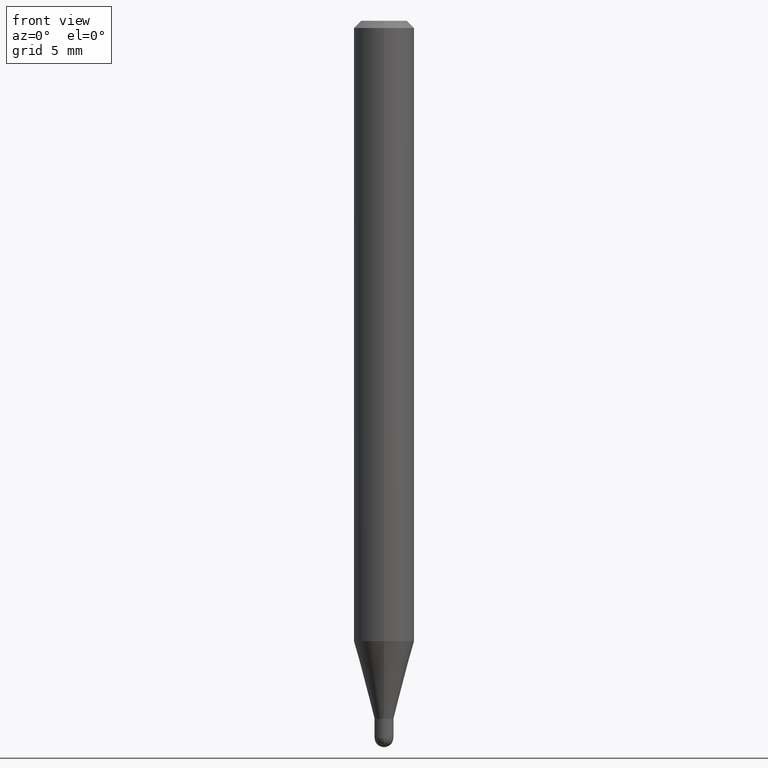
[diagram: clean part render]
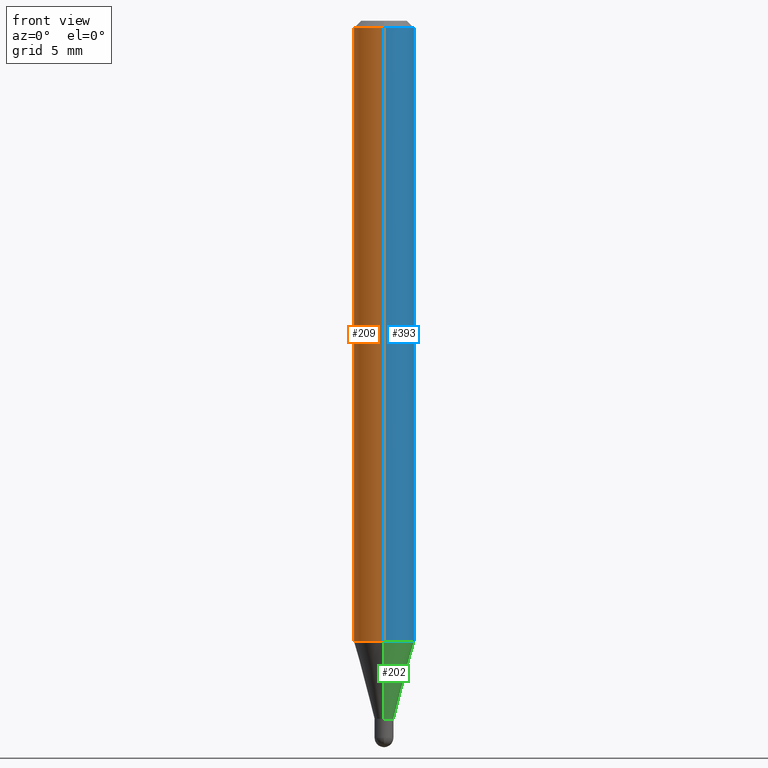
[diagram: same view with three faces highlighted in distinct colors, each labeled with its STEP entity id]
A machine part, front view with three faces highlighted in distinct colors.
Their STEP definitions:

[orange] entity #209 — the highlighted cylindrical surface (edge-blend (fillet) strip) has radius 1.5875 mm, axis along (-0, 0, 1).
#25 = CARTESIAN_POINT ( 'NONE',  ( 4.440892098500936776E-16, 0.06249999999999551054, -1.281021815274543618 ) ) ;
#31 = CARTESIAN_POINT ( 'NONE',  ( 4.440892098500625669E-16, 0.06250000000000000000, -2.182164816065379544E-16 ) ) ;
#39 = VERTEX_POINT ( 'NONE', #414 ) ;
#59 = EDGE_CURVE ( 'NONE', #286, #39, #144, .T. ) ;
#61 = CARTESIAN_POINT ( 'NONE',  ( 3.132714662716507044E-29, -4.472641174246900354E-15, -1.281021815274543396 ) ) ;
#62 = DIRECTION ( 'NONE',  ( -2.445481119339966983E-29, 3.491463705704607270E-15, 1.000000000000000000 ) ) ;
#63 = CIRCLE ( 'NONE', #482, 0.06250000000000000000 ) ;
#65 = EDGE_CURVE ( 'NONE', #163, #39, #463, .T. ) ;
#91 = EDGE_CURVE ( 'NONE', #284, #286, #63, .T. ) ;
#108 = CARTESIAN_POINT ( 'NONE',  ( 4.440892098500940720E-16, 0.06249999999999993755, -0.01500000000000022669 ) ) ;
#114 = CARTESIAN_POINT ( 'NONE',  ( 0.000000000000000000, 0.000000000000000000, 0.000000000000000000 ) ) ;
#118 = EDGE_LOOP ( 'NONE', ( #360, #165, #321, #240 ) ) ;
#120 = VECTOR ( 'NONE', #466, 39.37007874015748143 ) ;
#138 = DIRECTION ( 'NONE',  ( -6.982962677686265922E-15, -1.000000000000000000, 4.370956789862821150E-15 ) ) ;
#144 = LINE ( 'NONE', #446, #455 ) ;
#154 = LINE ( 'NONE', #31, #120 ) ;
#163 = VERTEX_POINT ( 'NONE', #108 ) ;
#165 = ORIENTED_EDGE ( 'NONE', *, *, #91, .T. ) ;
#172 = CARTESIAN_POINT ( 'NONE',  ( 3.668221679009952927E-31, -5.237195558556913912E-17, -0.01500000000000000812 ) ) ;
#189 = EDGE_CURVE ( 'NONE', #284, #163, #154, .T. ) ;
#209 = ADVANCED_FACE ( 'NONE', ( #429 ), #462, .T. ) ;
#217 = AXIS2_PLACEMENT_3D ( 'NONE', #172, #62, #409 ) ;
#230 = CARTESIAN_POINT ( 'NONE',  ( -4.364351673553604601E-16, -0.06250000000000449640, -1.281021815274543174 ) ) ;
#240 = ORIENTED_EDGE ( 'NONE', *, *, #65, .F. ) ;
#263 = DIRECTION ( 'NONE',  ( -2.445481119339966983E-29, 3.491463705704607270E-15, 1.000000000000000000 ) ) ;
#272 = AXIS2_PLACEMENT_3D ( 'NONE', #114, #423, #500 ) ;
#284 = VERTEX_POINT ( 'NONE', #25 ) ;
#286 = VERTEX_POINT ( 'NONE', #230 ) ;
#321 = ORIENTED_EDGE ( 'NONE', *, *, #59, .T. ) ;
#360 = ORIENTED_EDGE ( 'NONE', *, *, #189, .F. ) ;
#409 = DIRECTION ( 'NONE',  ( -6.982962677686265922E-15, -1.000000000000000000, 3.483106191921935554E-15 ) ) ;
#412 = DIRECTION ( 'NONE',  ( -2.445481119339966983E-29, 3.491463705704607270E-15, 1.000000000000000000 ) ) ;
#414 = CARTESIAN_POINT ( 'NONE',  ( -4.364351673553912750E-16, -0.06250000000000005551, -0.01499999999999979128 ) ) ;
#423 = DIRECTION ( 'NONE',  ( -2.445481119339966983E-29, 3.491463705704607270E-15, 1.000000000000000000 ) ) ;
#429 = FACE_OUTER_BOUND ( 'NONE', #118, .T. ) ;
#446 = CARTESIAN_POINT ( 'NONE',  ( -4.364351673553916201E-16, -0.06250000000000000000, 2.182164816065379544E-16 ) ) ;
#455 = VECTOR ( 'NONE', #412, 39.37007874015748143 ) ;
#462 = CYLINDRICAL_SURFACE ( 'NONE', #272, 0.06250000000000000000 ) ;
#463 = CIRCLE ( 'NONE', #217, 0.06250000000000000000 ) ;
#466 = DIRECTION ( 'NONE',  ( -2.445481119339966983E-29, 3.491463705704607270E-15, 1.000000000000000000 ) ) ;
#482 = AXIS2_PLACEMENT_3D ( 'NONE', #61, #263, #138 ) ;
#500 = DIRECTION ( 'NONE',  ( -6.982962677686265922E-15, -1.000000000000000000, 3.491463705704607270E-15 ) ) ;

[blue] entity #393 — the highlighted cylindrical surface (edge-blend (fillet) strip) has radius 1.5875 mm, axis along (-0, 0, 1).
#14 = DIRECTION ( 'NONE',  ( -2.445481119339966983E-29, 3.491463705704607270E-15, 1.000000000000000000 ) ) ;
#25 = CARTESIAN_POINT ( 'NONE',  ( 4.440892098500936776E-16, 0.06249999999999551054, -1.281021815274543618 ) ) ;
#31 = CARTESIAN_POINT ( 'NONE',  ( 4.440892098500625669E-16, 0.06250000000000000000, -2.182164816065379544E-16 ) ) ;
#39 = VERTEX_POINT ( 'NONE', #414 ) ;
#48 = EDGE_CURVE ( 'NONE', #286, #284, #447, .T. ) ;
#54 = AXIS2_PLACEMENT_3D ( 'NONE', #212, #14, #377 ) ;
#59 = EDGE_CURVE ( 'NONE', #286, #39, #144, .T. ) ;
#83 = ORIENTED_EDGE ( 'NONE', *, *, #59, .F. ) ;
#108 = CARTESIAN_POINT ( 'NONE',  ( 4.440892098500940720E-16, 0.06249999999999993755, -0.01500000000000022669 ) ) ;
#120 = VECTOR ( 'NONE', #466, 39.37007874015748143 ) ;
#123 = CARTESIAN_POINT ( 'NONE',  ( 0.000000000000000000, 0.000000000000000000, 0.000000000000000000 ) ) ;
#144 = LINE ( 'NONE', #446, #455 ) ;
#149 = ORIENTED_EDGE ( 'NONE', *, *, #326, .F. ) ;
#154 = LINE ( 'NONE', #31, #120 ) ;
#156 = DIRECTION ( 'NONE',  ( -6.982962677686265922E-15, -1.000000000000000000, 3.491463705704607270E-15 ) ) ;
#163 = VERTEX_POINT ( 'NONE', #108 ) ;
#184 = ORIENTED_EDGE ( 'NONE', *, *, #48, .T. ) ;
#189 = EDGE_CURVE ( 'NONE', #284, #163, #154, .T. ) ;
#212 = CARTESIAN_POINT ( 'NONE',  ( 3.132714662716507044E-29, -4.472641174246900354E-15, -1.281021815274543396 ) ) ;
#230 = CARTESIAN_POINT ( 'NONE',  ( -4.364351673553604601E-16, -0.06250000000000449640, -1.281021815274543174 ) ) ;
#243 = DIRECTION ( 'NONE',  ( -2.445481119339966983E-29, 3.491463705704607270E-15, 1.000000000000000000 ) ) ;
#247 = CARTESIAN_POINT ( 'NONE',  ( 3.668221679009952927E-31, -5.237195558556913912E-17, -0.01500000000000000812 ) ) ;
#262 = CIRCLE ( 'NONE', #411, 0.06250000000000000000 ) ;
#268 = EDGE_LOOP ( 'NONE', ( #184, #441, #149, #83 ) ) ;
#280 = CYLINDRICAL_SURFACE ( 'NONE', #394, 0.06250000000000000000 ) ;
#284 = VERTEX_POINT ( 'NONE', #25 ) ;
#286 = VERTEX_POINT ( 'NONE', #230 ) ;
#326 = EDGE_CURVE ( 'NONE', #39, #163, #262, .T. ) ;
#328 = FACE_OUTER_BOUND ( 'NONE', #268, .T. ) ;
#354 = DIRECTION ( 'NONE',  ( -6.982962677686265922E-15, -1.000000000000000000, 3.483106191921935554E-15 ) ) ;
#377 = DIRECTION ( 'NONE',  ( -6.982962677686265922E-15, -1.000000000000000000, 4.370956789862821150E-15 ) ) ;
#393 = ADVANCED_FACE ( 'NONE', ( #328 ), #280, .T. ) ;
#394 = AXIS2_PLACEMENT_3D ( 'NONE', #123, #243, #156 ) ;
#411 = AXIS2_PLACEMENT_3D ( 'NONE', #247, #477, #354 ) ;
#412 = DIRECTION ( 'NONE',  ( -2.445481119339966983E-29, 3.491463705704607270E-15, 1.000000000000000000 ) ) ;
#414 = CARTESIAN_POINT ( 'NONE',  ( -4.364351673553912750E-16, -0.06250000000000005551, -0.01499999999999979128 ) ) ;
#441 = ORIENTED_EDGE ( 'NONE', *, *, #189, .T. ) ;
#446 = CARTESIAN_POINT ( 'NONE',  ( -4.364351673553916201E-16, -0.06250000000000000000, 2.182164816065379544E-16 ) ) ;
#447 = CIRCLE ( 'NONE', #54, 0.06250000000000000000 ) ;
#455 = VECTOR ( 'NONE', #412, 39.37007874015748143 ) ;
#466 = DIRECTION ( 'NONE',  ( -2.445481119339966983E-29, 3.491463705704607270E-15, 1.000000000000000000 ) ) ;
#477 = DIRECTION ( 'NONE',  ( -2.445481119339966983E-29, 3.491463705704607270E-15, 1.000000000000000000 ) ) ;

[green] entity #202 — the highlighted conical surface has half-angle 15 deg.
#14 = DIRECTION ( 'NONE',  ( -2.445481119339966983E-29, 3.491463705704607270E-15, 1.000000000000000000 ) ) ;
#23 = EDGE_CURVE ( 'NONE', #234, #284, #141, .T. ) ;
#25 = CARTESIAN_POINT ( 'NONE',  ( 4.440892098500936776E-16, 0.06249999999999551054, -1.281021815274543618 ) ) ;
#48 = EDGE_CURVE ( 'NONE', #286, #284, #447, .T. ) ;
#54 = AXIS2_PLACEMENT_3D ( 'NONE', #212, #14, #377 ) ;
#70 = DIRECTION ( 'NONE',  ( -6.982962677686266711E-15, -1.000000000000000000, 0.000000000000000000 ) ) ;
#72 = CARTESIAN_POINT ( 'NONE',  ( -1.361677722148463895E-16, -0.01950000000000495434, -1.441500000000000448 ) ) ;
#85 = CIRCLE ( 'NONE', #152, 0.01949999999999992017 ) ;
#96 = DIRECTION ( 'NONE',  ( 1.839019923739647253E-15, 0.2588190451025315642, 0.9659258262890653146 ) ) ;
#97 = AXIS2_PLACEMENT_3D ( 'NONE', #187, #305, #70 ) ;
#102 = DIRECTION ( 'NONE',  ( -2.445481119339966983E-29, 3.491463705704607270E-15, 1.000000000000000000 ) ) ;
#109 = ORIENTED_EDGE ( 'NONE', *, *, #23, .T. ) ;
#110 = CARTESIAN_POINT ( 'NONE',  ( 2.913225216616741220E-16, 0.01949999999999488948, -1.441500000000000448 ) ) ;
#115 = ORIENTED_EDGE ( 'NONE', *, *, #503, .T. ) ;
#141 = LINE ( 'NONE', #258, #174 ) ;
#150 = DIRECTION ( 'NONE',  ( -1.807323732225376682E-15, -0.2588190451025248473, 0.9659258262890670910 ) ) ;
#152 = AXIS2_PLACEMENT_3D ( 'NONE', #443, #102, #335 ) ;
#174 = VECTOR ( 'NONE', #96, 39.37007874015748854 ) ;
#187 = CARTESIAN_POINT ( 'NONE',  ( 3.525161033528563545E-29, -5.032944931773192069E-15, -1.441500000000000448 ) ) ;
#202 = ADVANCED_FACE ( 'NONE', ( #344 ), #297, .T. ) ;
#206 = ORIENTED_EDGE ( 'NONE', *, *, #48, .F. ) ;
#212 = CARTESIAN_POINT ( 'NONE',  ( 3.132714662716507044E-29, -4.472641174246900354E-15, -1.281021815274543396 ) ) ;
#226 = VERTEX_POINT ( 'NONE', #72 ) ;
#227 = CARTESIAN_POINT ( 'NONE',  ( -1.361677722148463895E-16, -0.01950000000000495434, -1.441500000000000448 ) ) ;
#230 = CARTESIAN_POINT ( 'NONE',  ( -4.364351673553604601E-16, -0.06250000000000449640, -1.281021815274543174 ) ) ;
#234 = VERTEX_POINT ( 'NONE', #110 ) ;
#258 = CARTESIAN_POINT ( 'NONE',  ( 1.385558334732541966E-16, 0.01949999999999488948, -1.441500000000000448 ) ) ;
#265 = EDGE_CURVE ( 'NONE', #226, #286, #495, .T. ) ;
#284 = VERTEX_POINT ( 'NONE', #25 ) ;
#286 = VERTEX_POINT ( 'NONE', #230 ) ;
#297 = CONICAL_SURFACE ( 'NONE', #97, 0.01949999999999992017, 0.2617993877991571794 ) ;
#305 = DIRECTION ( 'NONE',  ( -2.445481119339966983E-29, 3.491463705704607270E-15, 1.000000000000000000 ) ) ;
#335 = DIRECTION ( 'NONE',  ( -6.982962677686266711E-15, -1.000000000000000000, 0.000000000000000000 ) ) ;
#344 = FACE_OUTER_BOUND ( 'NONE', #478, .T. ) ;
#369 = VECTOR ( 'NONE', #150, 39.37007874015748143 ) ;
#377 = DIRECTION ( 'NONE',  ( -6.982962677686265922E-15, -1.000000000000000000, 4.370956789862821150E-15 ) ) ;
#443 = CARTESIAN_POINT ( 'NONE',  ( 3.525161033528563545E-29, -5.032944931773192069E-15, -1.441500000000000448 ) ) ;
#447 = CIRCLE ( 'NONE', #54, 0.06250000000000000000 ) ;
#472 = ORIENTED_EDGE ( 'NONE', *, *, #265, .F. ) ;
#478 = EDGE_LOOP ( 'NONE', ( #115, #109, #206, #472 ) ) ;
#495 = LINE ( 'NONE', #227, #369 ) ;
#503 = EDGE_CURVE ( 'NONE', #226, #234, #85, .T. ) ;